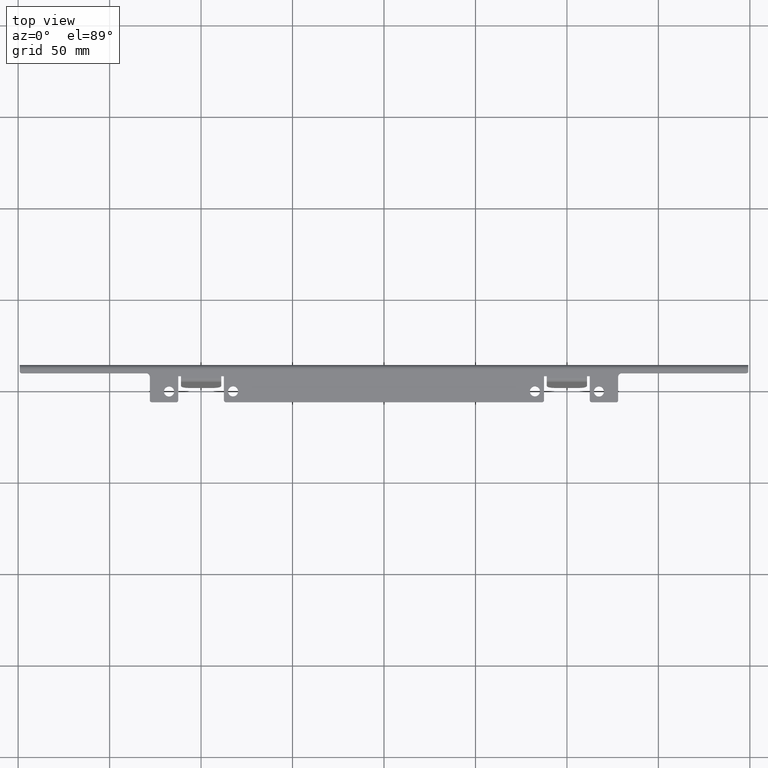
[diagram: clean part render]
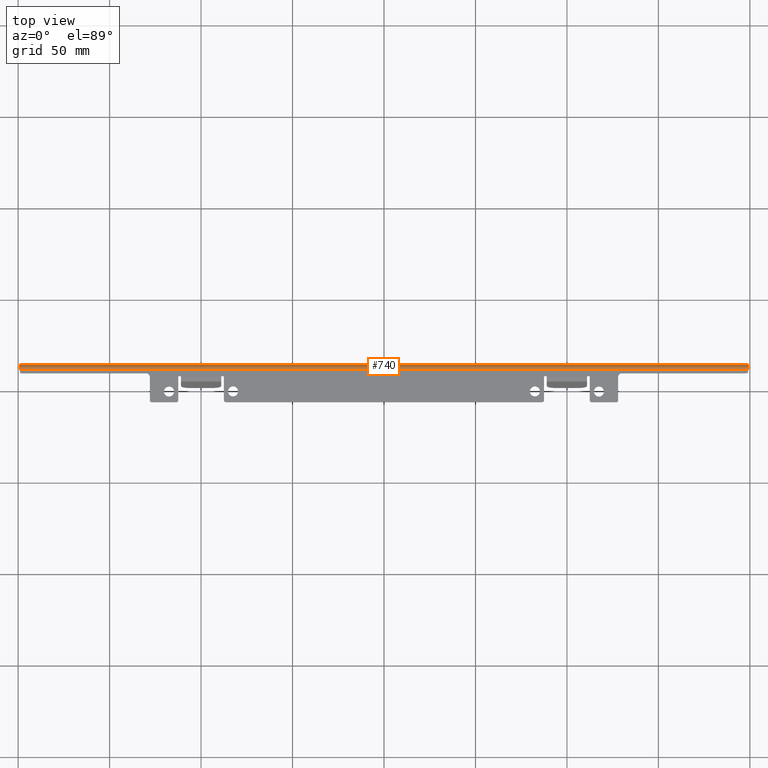
[diagram: same view with one face highlighted and labeled with its STEP entity id]
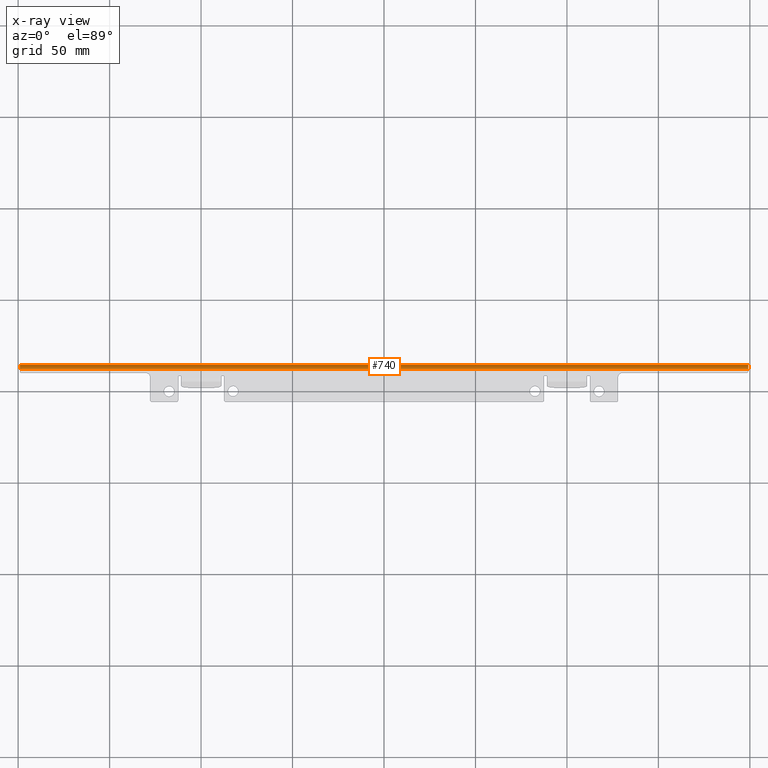
[diagram: x-ray of the same camera — body ghosted, the highlighted face saturated]
A machine part, top view. The second image highlights one B-rep face of the part: STEP entity #740.
The next image is the same camera in x-ray: the body ghosted, the highlighted face saturated — about 0% of this face is hidden behind the body in this view.
In plain terms, the highlighted cylindrical surface (edge-blend (fillet) strip) has radius 2.5 mm, axis along (1, 0, 0).
Its self-contained STEP definition (entity closure, byte-faithful):
#176 = VERTEX_POINT ( 'NONE', #1289 ) ;
#202 = DIRECTION ( 'NONE',  ( 1.000000000000000000, 0.0000000000000000000, 0.0000000000000000000 ) ) ;
#219 = CYLINDRICAL_SURFACE ( 'NONE', #1009, 2.500000000000001300 ) ;
#226 = VERTEX_POINT ( 'NONE', #2243 ) ;
#279 = DIRECTION ( 'NONE',  ( 0.0000000000000000000, 0.0000000000000000000, -1.000000000000000000 ) ) ;
#293 = DIRECTION ( 'NONE',  ( 0.0000000000000000000, 2.081668171172166500E-015, -1.000000000000000000 ) ) ;
#348 = EDGE_CURVE ( 'NONE', #176, #2236, #488, .T. ) ;
#445 = CARTESIAN_POINT ( 'NONE',  ( 199.0999999999999700, 11.57195934717847900, -2.499999999999998700 ) ) ;
#451 = AXIS2_PLACEMENT_3D ( 'NONE', #2378, #1234, #293 ) ;
#482 = DIRECTION ( 'NONE',  ( -1.000000000000000000, -0.0000000000000000000, -0.0000000000000000000 ) ) ;
#488 = LINE ( 'NONE', #1689, #2428 ) ;
#570 = DIRECTION ( 'NONE',  ( -1.000000000000000000, -0.0000000000000000000, -0.0000000000000000000 ) ) ;
#740 = ADVANCED_FACE ( 'NONE', ( #905 ), #219, .T. ) ;
#842 = CARTESIAN_POINT ( 'NONE',  ( -199.0999999999999900, 14.06244609240785000, -2.717889356869136900 ) ) ;
#843 = VERTEX_POINT ( 'NONE', #2017 ) ;
#898 = ORIENTED_EDGE ( 'NONE', *, *, #348, .F. ) ;
#905 = FACE_OUTER_BOUND ( 'NONE', #1780, .T. ) ;
#945 = EDGE_CURVE ( 'NONE', #2236, #226, #1161, .T. ) ;
#1009 = AXIS2_PLACEMENT_3D ( 'NONE', #1712, #202, #1694 ) ;
#1058 = LINE ( 'NONE', #842, #1560 ) ;
#1161 = CIRCLE ( 'NONE', #451, 2.500000000000002200 ) ;
#1215 = EDGE_CURVE ( 'NONE', #843, #176, #2380, .T. ) ;
#1234 = DIRECTION ( 'NONE',  ( -1.000000000000000000, -0.0000000000000000000, -0.0000000000000000000 ) ) ;
#1273 = ORIENTED_EDGE ( 'NONE', *, *, #2420, .T. ) ;
#1289 = CARTESIAN_POINT ( 'NONE',  ( 199.0999999999999700, 11.57195934717847900, 3.035766082959412400E-015 ) ) ;
#1397 = DIRECTION ( 'NONE',  ( 1.000000000000000000, 0.0000000000000000000, 0.0000000000000000000 ) ) ;
#1407 = AXIS2_PLACEMENT_3D ( 'NONE', #445, #1397, #279 ) ;
#1560 = VECTOR ( 'NONE', #482, 1000.000000000000000 ) ;
#1683 = CARTESIAN_POINT ( 'NONE',  ( -199.0999999999999900, 11.57195934717847800, 0.0000000000000000000 ) ) ;
#1689 = CARTESIAN_POINT ( 'NONE',  ( -199.0999999999999900, 11.57195934717847800, 0.0000000000000000000 ) ) ;
#1694 = DIRECTION ( 'NONE',  ( 0.0000000000000000000, 0.9961946980917458800, -0.08715574274765487700 ) ) ;
#1712 = CARTESIAN_POINT ( 'NONE',  ( 199.0999999999999900, 11.57195934717847900, -2.499999999999998700 ) ) ;
#1729 = ORIENTED_EDGE ( 'NONE', *, *, #1215, .F. ) ;
#1780 = EDGE_LOOP ( 'NONE', ( #898, #1729, #1273, #1980 ) ) ;
#1980 = ORIENTED_EDGE ( 'NONE', *, *, #945, .F. ) ;
#2017 = CARTESIAN_POINT ( 'NONE',  ( 199.0999999999999900, 14.06244609240788500, -2.717889356869134200 ) ) ;
#2236 = VERTEX_POINT ( 'NONE', #1683 ) ;
#2243 = CARTESIAN_POINT ( 'NONE',  ( -199.1000000000001100, 14.06244609240784800, -2.717889356869136000 ) ) ;
#2378 = CARTESIAN_POINT ( 'NONE',  ( -199.0999999999999900, 11.57195934717847900, -2.499999999999998700 ) ) ;
#2380 = CIRCLE ( 'NONE', #1407, 2.500000000000002200 ) ;
#2420 = EDGE_CURVE ( 'NONE', #843, #226, #1058, .T. ) ;
#2428 = VECTOR ( 'NONE', #570, 1000.000000000000000 ) ;